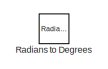
[diagram: root canvas - part 1/5, top right region]
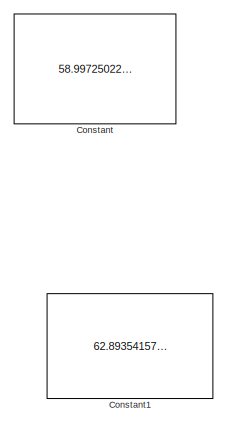
[diagram: root canvas - part 2/5, middle left region]
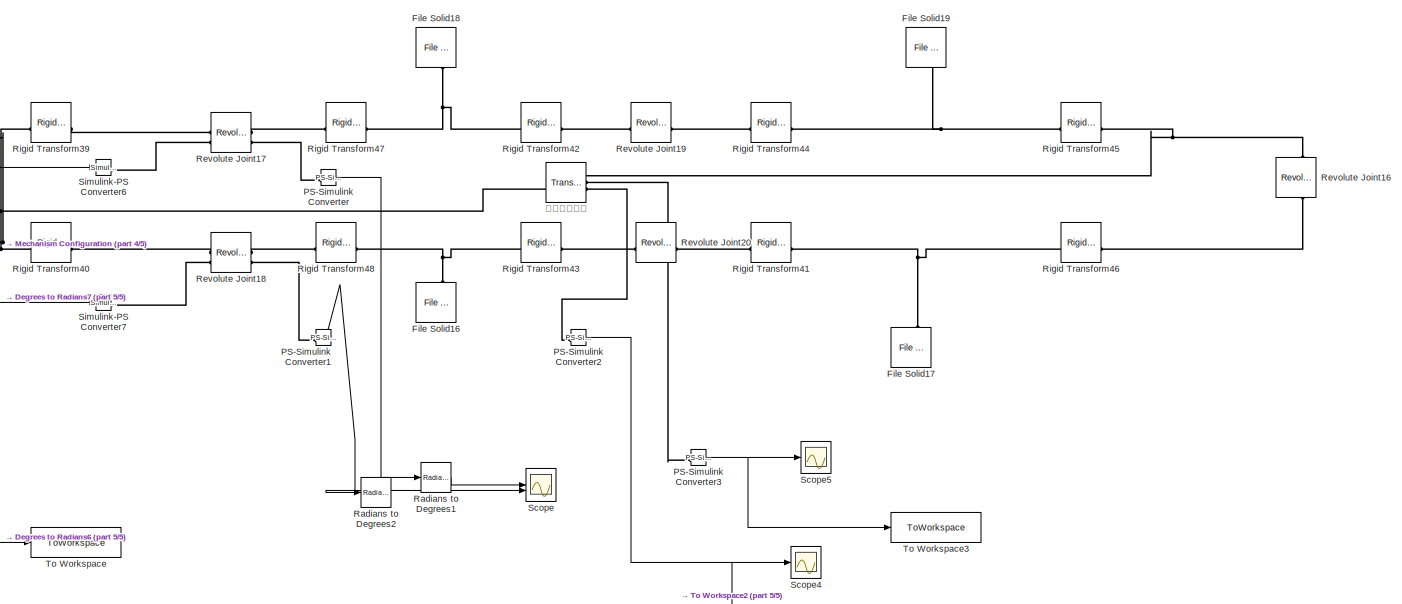
[diagram: root canvas - part 3/5, bottom right region]
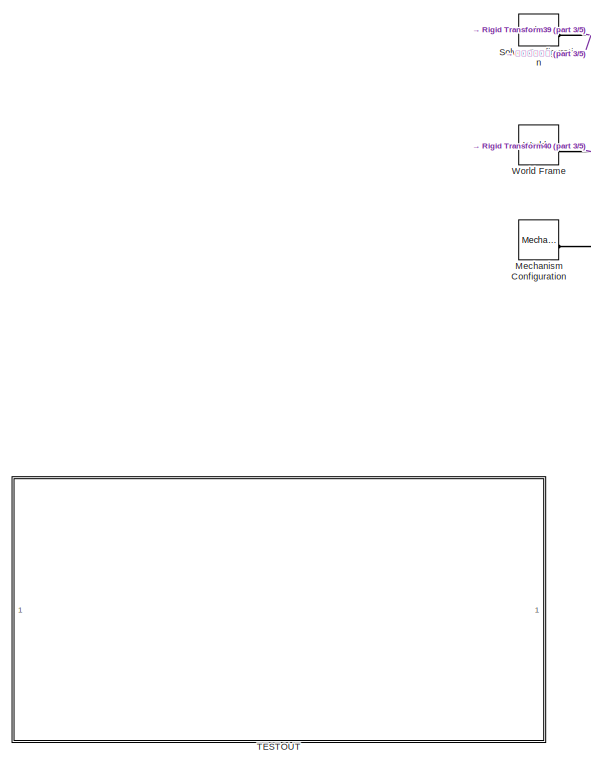
[diagram: root canvas - part 4/5, bottom left region]
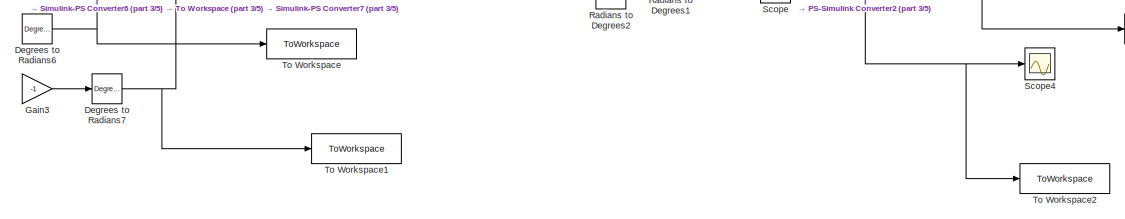
[diagram: root canvas - part 5/5, bottom center region]
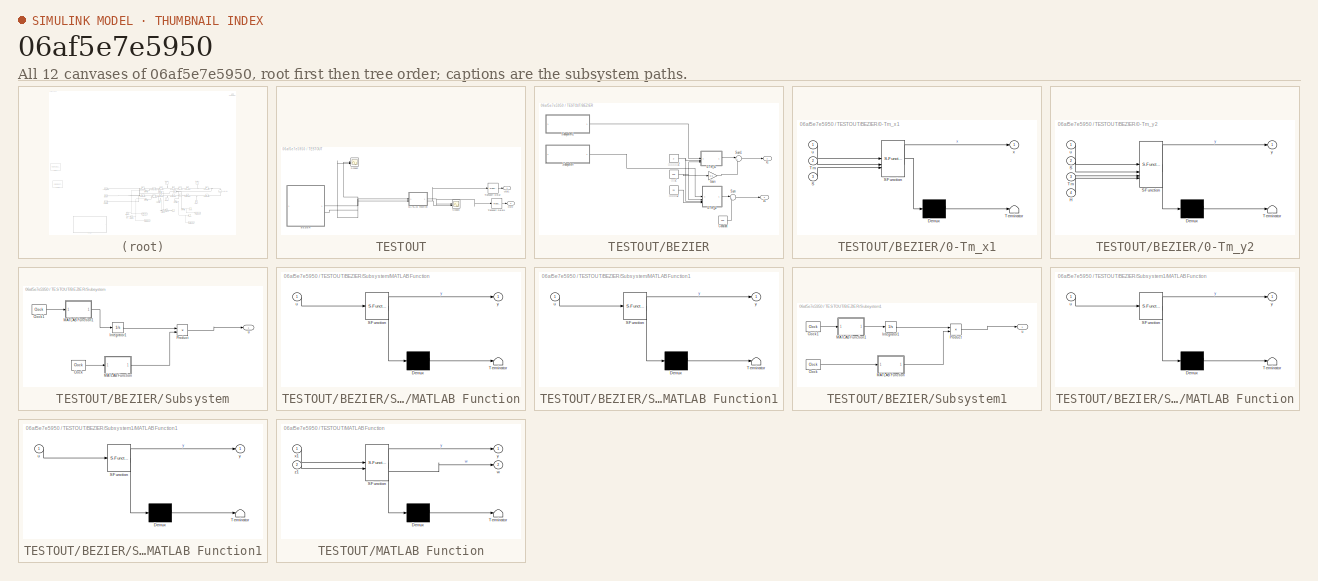
[diagram: thumbnail index - all 12 canvases of the model, root first then tree order]
MODEL slx_06af5e7e5950
KIND model
CONFIG AbsTol = auto
CONFIG EnableMultiTasking = off
CONFIG FixedStep = 0.0001
CONFIG MaxStep = auto
CONFIG MinStep = auto
CONFIG RelTol = 1e-3
CONFIG SampleTimeConstraint = Unconstrained
CONFIG SolverName = FixedStepAuto
CONFIG StartTime = 0.0
CONFIG StopTime = 80
BLOCK [Constant] Constant
  NameLocation = left
  Value = 58.997250224040580
BLOCK [Constant] Constant1
  NameLocation = right
  Value = 62.893541577805120
BLOCK [Reference] Degrees to Radians6  REF=simulink_extras/Transformations/Degrees to
Radians
  SourceBlock = simulink_extras/Transformations/Degrees to\nRadians
  SourceType = DegreesToRadians
BLOCK [Reference] Degrees to Radians7  REF=simulink_extras/Transformations/Degrees to
Radians
  SourceBlock = simulink_extras/Transformations/Degrees to\nRadians
  SourceType = DegreesToRadians
BLOCK [Reference] File Solid16  REF=sm_lib/Body Elements/File Solid
  NameLocation = right
  SourceBlock = sm_lib/Body Elements/File Solid
  SourceType = File Solid
BLOCK [Reference] File Solid17  REF=sm_lib/Body Elements/File Solid
  NameLocation = right
  SourceBlock = sm_lib/Body Elements/File Solid
  SourceType = File Solid
BLOCK [Reference] File Solid18  REF=sm_lib/Body Elements/File Solid
  NameLocation = left
  SourceBlock = sm_lib/Body Elements/File Solid
  SourceType = File Solid
BLOCK [Reference] File Solid19  REF=sm_lib/Body Elements/File Solid
  NameLocation = left
  SourceBlock = sm_lib/Body Elements/File Solid
  SourceType = File Solid
BLOCK [Gain] Gain3
  Gain = -1
BLOCK [Reference] Mechanism Configuration  REF=sm_lib/Utilities/Mechanism
Configuration
  SourceBlock = sm_lib/Utilities/Mechanism\nConfiguration
  SourceType = Mechanism\nConfiguration
BLOCK [Reference] PS-Simulink Converter  REF=nesl_utility/PS-Simulink
Converter
  SourceBlock = nesl_utility/PS-Simulink\nConverter
  SourceType = PS-Simulink\nConverter
BLOCK [Reference] PS-Simulink Converter1  REF=nesl_utility/PS-Simulink
Converter
  SourceBlock = nesl_utility/PS-Simulink\nConverter
  SourceType = PS-Simulink\nConverter
BLOCK [Reference] PS-Simulink Converter2  REF=nesl_utility/PS-Simulink
Converter
  SourceBlock = nesl_utility/PS-Simulink\nConverter
  SourceType = PS-Simulink\nConverter
BLOCK [Reference] PS-Simulink Converter3  REF=nesl_utility/PS-Simulink
Converter
  SourceBlock = nesl_utility/PS-Simulink\nConverter
  SourceType = PS-Simulink\nConverter
BLOCK [Reference] Radians to Degrees  REF=simulink_extras/Transformations/Radians
to Degrees
  Commented = on
  SourceBlock = simulink_extras/Transformations/Radians\nto Degrees
  SourceType = RadiansToDegrees
BLOCK [Reference] Radians to Degrees1  REF=simulink_extras/Transformations/Radians
to Degrees
  SourceBlock = simulink_extras/Transformations/Radians\nto Degrees
  SourceType = RadiansToDegrees
BLOCK [Reference] Radians to Degrees2  REF=simulink_extras/Transformations/Radians
to Degrees
  SourceBlock = simulink_extras/Transformations/Radians\nto Degrees
  SourceType = RadiansToDegrees
BLOCK [Reference] Revolute Joint16  REF=sm_lib/Joints/Revolute Joint
  NameLocation = right
  SourceBlock = sm_lib/Joints/Revolute Joint
  SourceType = Revolute Joint
BLOCK [Reference] Revolute Joint17  REF=sm_lib/Joints/Revolute Joint
  SourceBlock = sm_lib/Joints/Revolute Joint
  SourceType = Revolute Joint
BLOCK [Reference] Revolute Joint18  REF=sm_lib/Joints/Revolute Joint
  SourceBlock = sm_lib/Joints/Revolute Joint
  SourceType = Revolute Joint
BLOCK [Reference] Revolute Joint19  REF=sm_lib/Joints/Revolute Joint
  SourceBlock = sm_lib/Joints/Revolute Joint
  SourceType = Revolute Joint
BLOCK [Reference] Revolute Joint20  REF=sm_lib/Joints/Revolute Joint
  SourceBlock = sm_lib/Joints/Revolute Joint
  SourceType = Revolute Joint
BLOCK [Reference] Rigid Transform39  REF=sm_lib/Frames and
Transforms/Rigid
Transform
  SourceBlock = sm_lib/Frames and\nTransforms/Rigid\nTransform
  SourceType = Rigid\nTransform
BLOCK [Reference] Rigid Transform40  REF=sm_lib/Frames and
Transforms/Rigid
Transform
  SourceBlock = sm_lib/Frames and\nTransforms/Rigid\nTransform
  SourceType = Rigid\nTransform
BLOCK [Reference] Rigid Transform41  REF=sm_lib/Frames and
Transforms/Rigid
Transform
  SourceBlock = sm_lib/Frames and\nTransforms/Rigid\nTransform
  SourceType = Rigid\nTransform
BLOCK [Reference] Rigid Transform42  REF=sm_lib/Frames and
Transforms/Rigid
Transform
  SourceBlock = sm_lib/Frames and\nTransforms/Rigid\nTransform
  SourceType = Rigid\nTransform
BLOCK [Reference] Rigid Transform43  REF=sm_lib/Frames and
Transforms/Rigid
Transform
  SourceBlock = sm_lib/Frames and\nTransforms/Rigid\nTransform
  SourceType = Rigid\nTransform
BLOCK [Reference] Rigid Transform44  REF=sm_lib/Frames and
Transforms/Rigid
Transform
  SourceBlock = sm_lib/Frames and\nTransforms/Rigid\nTransform
  SourceType = Rigid\nTransform
BLOCK [Reference] Rigid Transform45  REF=sm_lib/Frames and
Transforms/Rigid
Transform
  SourceBlock = sm_lib/Frames and\nTransforms/Rigid\nTransform
  SourceType = Rigid\nTransform
BLOCK [Reference] Rigid Transform46  REF=sm_lib/Frames and
Transforms/Rigid
Transform
  SourceBlock = sm_lib/Frames and\nTransforms/Rigid\nTransform
  SourceType = Rigid\nTransform
BLOCK [Reference] Rigid Transform47  REF=sm_lib/Frames and
Transforms/Rigid
Transform
  SourceBlock = sm_lib/Frames and\nTransforms/Rigid\nTransform
  SourceType = Rigid\nTransform
BLOCK [Reference] Rigid Transform48  REF=sm_lib/Frames and
Transforms/Rigid
Transform
  SourceBlock = sm_lib/Frames and\nTransforms/Rigid\nTransform
  SourceType = Rigid\nTransform
BLOCK [Scope] Scope
  Floating = off
  NumInputPorts = 2
  ScopeSpecificationString = Simulink.scopes.TimeScopeBlockCfg('CurrentConfiguration', extmgr.ConfigurationSet(extmgr.Configuration('Core','General UI',true),extmgr.Configuration('Core','Source UI',true),extmgr.Configuration('Sources','WiredSimulink',true),extmgr.Configuration('Visuals','Time Domain',true,'SerializedDisplays',{struct('MinYLimReal','-100.10056','MaxYLimReal','100.09299','YLabelReal','','MinYLimMag',' 0.00000',...<+1776ch>
BLOCK [Scope] Scope4
  Floating = off
  NumInputPorts = 1
  ScopeSpecificationString = Simulink.scopes.TimeScopeBlockCfg('CurrentConfiguration', extmgr.ConfigurationSet(extmgr.Configuration('Core','General UI',true),extmgr.Configuration('Core','Source UI',true),extmgr.Configuration('Sources','WiredSimulink',true,'DataLoggingVariableName','ScopeData4'),extmgr.Configuration('Visuals','Time Domain',true,'SerializedDisplays',{struct('MinYLimReal','-0.21672','MaxYLimReal','-0.18282','YLa...<+1756ch>
BLOCK [Scope] Scope5
  Floating = off
  NumInputPorts = 1
  ScopeSpecificationString = Simulink.scopes.TimeScopeBlockCfg('CurrentConfiguration', extmgr.ConfigurationSet(extmgr.Configuration('Core','General UI',true),extmgr.Configuration('Core','Source UI',true),extmgr.Configuration('Sources','WiredSimulink',true,'DataLoggingVariableName','ScopeData5'),extmgr.Configuration('Visuals','Time Domain',true,'SerializedDisplays',{struct('MinYLimReal','-0.06256','MaxYLimReal','0.06255','YLab...<+1984ch>
BLOCK [Reference] Simulink-PS Converter6  REF=nesl_utility/Simulink-PS
Converter
  SourceBlock = nesl_utility/Simulink-PS\nConverter
  SourceType = Simulink-PS\nConverter
BLOCK [Reference] Simulink-PS Converter7  REF=nesl_utility/Simulink-PS
Converter
  SourceBlock = nesl_utility/Simulink-PS\nConverter
  SourceType = Simulink-PS\nConverter
BLOCK [Reference] Solver Configuration  REF=nesl_utility/Solver
Configuration
  SourceBlock = nesl_utility/Solver\nConfiguration
  SourceType = Solver\nConfiguration
BLOCK [SubSystem] TESTOUT
BLOCK [SubSystem] TESTOUT/BEZIER
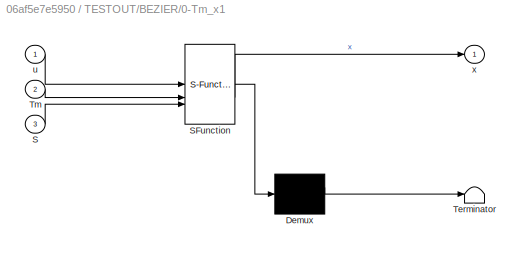
BLOCK [SubSystem] TESTOUT/BEZIER/0-Tm_x1
  ErrorFcn = Stateflow.Translate.translate
  PermitHierarchicalResolution = ExplicitOnly
  SFBlockType = MATLAB Function
  TreatAsAtomicUnit = on
BLOCK [Demux] TESTOUT/BEZIER/0-Tm_x1/ Demux 
  Outputs = 1
BLOCK [S-Function] TESTOUT/BEZIER/0-Tm_x1/ SFunction 
  EnableBusSupport = on
  FunctionName = sf_sfun
  PortCounts = [3 2]
  SFcnIsStateOwnerBlock = off
  SFunctionDeploymentMode = off
  Tag = Stateflow S-Function 1
BLOCK [Terminator] TESTOUT/BEZIER/0-Tm_x1/ Terminator 
BLOCK [Inport] TESTOUT/BEZIER/0-Tm_x1/S
  Port = 3
BLOCK [Inport] TESTOUT/BEZIER/0-Tm_x1/Tm
  Port = 2
BLOCK [Inport] TESTOUT/BEZIER/0-Tm_x1/u
BLOCK [Outport] TESTOUT/BEZIER/0-Tm_x1/x
  VectorParamsAs1DForOutWhenUnconnected = off
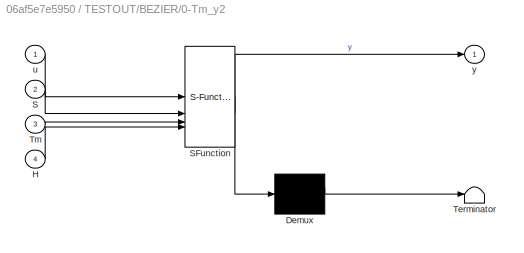
BLOCK [SubSystem] TESTOUT/BEZIER/0-Tm_y2
  ErrorFcn = Stateflow.Translate.translate
  PermitHierarchicalResolution = ExplicitOnly
  SFBlockType = MATLAB Function
  TreatAsAtomicUnit = on
BLOCK [Demux] TESTOUT/BEZIER/0-Tm_y2/ Demux 
  Outputs = 1
BLOCK [S-Function] TESTOUT/BEZIER/0-Tm_y2/ SFunction 
  EnableBusSupport = on
  FunctionName = sf_sfun
  PortCounts = [4 2]
  SFcnIsStateOwnerBlock = off
  SFunctionDeploymentMode = off
  Tag = Stateflow S-Function 2
BLOCK [Terminator] TESTOUT/BEZIER/0-Tm_y2/ Terminator 
BLOCK [Inport] TESTOUT/BEZIER/0-Tm_y2/H
  Port = 4
BLOCK [Inport] TESTOUT/BEZIER/0-Tm_y2/S
  Port = 2
BLOCK [Inport] TESTOUT/BEZIER/0-Tm_y2/Tm
  Port = 3
BLOCK [Inport] TESTOUT/BEZIER/0-Tm_y2/u
BLOCK [Outport] TESTOUT/BEZIER/0-Tm_y2/y
  VectorParamsAs1DForOutWhenUnconnected = off
BLOCK [Constant] TESTOUT/BEZIER/Constant
  Value = 200
BLOCK [Gain] TESTOUT/BEZIER/Gain
  Gain = 0.5
BLOCK [SubSystem] TESTOUT/BEZIER/Subsystem
BLOCK [Reference] TESTOUT/BEZIER/Subsystem/Clock  REF=simulink_extras/Flip Flops/Clock
  SourceBlock = simulink_extras/Flip Flops/Clock
  SourceType = Digital clock
BLOCK [Reference] TESTOUT/BEZIER/Subsystem/Clock1  REF=simulink_extras/Flip Flops/Clock
  SourceBlock = simulink_extras/Flip Flops/Clock
  SourceType = Digital clock
BLOCK [Integrator] TESTOUT/BEZIER/Subsystem/Integrator1
BLOCK [SubSystem] TESTOUT/BEZIER/Subsystem/MATLAB Function
  ErrorFcn = Stateflow.Translate.translate
  PermitHierarchicalResolution = ExplicitOnly
  SFBlockType = MATLAB Function
  TreatAsAtomicUnit = on
BLOCK [Demux] TESTOUT/BEZIER/Subsystem/MATLAB Function/ Demux 
  Outputs = 1
BLOCK [S-Function] TESTOUT/BEZIER/Subsystem/MATLAB Function/ SFunction 
  EnableBusSupport = on
  FunctionName = sf_sfun
  PortCounts = [1 2]
  SFcnIsStateOwnerBlock = off
  SFunctionDeploymentMode = off
  Tag = Stateflow S-Function 17
BLOCK [Terminator] TESTOUT/BEZIER/Subsystem/MATLAB Function/ Terminator 
BLOCK [Inport] TESTOUT/BEZIER/Subsystem/MATLAB Function/u
BLOCK [Outport] TESTOUT/BEZIER/Subsystem/MATLAB Function/y
  VectorParamsAs1DForOutWhenUnconnected = off
BLOCK [SubSystem] TESTOUT/BEZIER/Subsystem/MATLAB Function1
  ErrorFcn = Stateflow.Translate.translate
  PermitHierarchicalResolution = ExplicitOnly
  SFBlockType = MATLAB Function
  TreatAsAtomicUnit = on
BLOCK [Demux] TESTOUT/BEZIER/Subsystem/MATLAB Function1/ Demux 
  Outputs = 1
BLOCK [S-Function] TESTOUT/BEZIER/Subsystem/MATLAB Function1/ SFunction 
  EnableBusSupport = on
  FunctionName = sf_sfun
  PortCounts = [1 2]
  SFcnIsStateOwnerBlock = off
  SFunctionDeploymentMode = off
  Tag = Stateflow S-Function 18
BLOCK [Terminator] TESTOUT/BEZIER/Subsystem/MATLAB Function1/ Terminator 
BLOCK [Inport] TESTOUT/BEZIER/Subsystem/MATLAB Function1/u
BLOCK [Outport] TESTOUT/BEZIER/Subsystem/MATLAB Function1/y
  VectorParamsAs1DForOutWhenUnconnected = off
BLOCK [Product] TESTOUT/BEZIER/Subsystem/Product
BLOCK [Outport] TESTOUT/BEZIER/Subsystem/u
  VectorParamsAs1DForOutWhenUnconnected = off
BLOCK [SubSystem] TESTOUT/BEZIER/Subsystem1
BLOCK [Reference] TESTOUT/BEZIER/Subsystem1/Clock  REF=simulink_extras/Flip Flops/Clock
  SourceBlock = simulink_extras/Flip Flops/Clock
  SourceType = Digital clock
BLOCK [Reference] TESTOUT/BEZIER/Subsystem1/Clock1  REF=simulink_extras/Flip Flops/Clock
  SourceBlock = simulink_extras/Flip Flops/Clock
  SourceType = Digital clock
BLOCK [Integrator] TESTOUT/BEZIER/Subsystem1/Integrator1
BLOCK [SubSystem] TESTOUT/BEZIER/Subsystem1/MATLAB Function
  ErrorFcn = Stateflow.Translate.translate
  PermitHierarchicalResolution = ExplicitOnly
  SFBlockType = MATLAB Function
  TreatAsAtomicUnit = on
BLOCK [Demux] TESTOUT/BEZIER/Subsystem1/MATLAB Function/ Demux 
  Outputs = 1
BLOCK [S-Function] TESTOUT/BEZIER/Subsystem1/MATLAB Function/ SFunction 
  EnableBusSupport = on
  FunctionName = sf_sfun
  PortCounts = [1 2]
  SFcnIsStateOwnerBlock = off
  SFunctionDeploymentMode = off
  Tag = Stateflow S-Function 19
BLOCK [Terminator] TESTOUT/BEZIER/Subsystem1/MATLAB Function/ Terminator 
BLOCK [Inport] TESTOUT/BEZIER/Subsystem1/MATLAB Function/u
BLOCK [Outport] TESTOUT/BEZIER/Subsystem1/MATLAB Function/y
  VectorParamsAs1DForOutWhenUnconnected = off
BLOCK [SubSystem] TESTOUT/BEZIER/Subsystem1/MATLAB Function1
  ErrorFcn = Stateflow.Translate.translate
  PermitHierarchicalResolution = ExplicitOnly
  SFBlockType = MATLAB Function
  TreatAsAtomicUnit = on
BLOCK [Demux] TESTOUT/BEZIER/Subsystem1/MATLAB Function1/ Demux 
  Outputs = 1
BLOCK [S-Function] TESTOUT/BEZIER/Subsystem1/MATLAB Function1/ SFunction 
  EnableBusSupport = on
  FunctionName = sf_sfun
  PortCounts = [1 2]
  SFcnIsStateOwnerBlock = off
  SFunctionDeploymentMode = off
  Tag = Stateflow S-Function 20
BLOCK [Terminator] TESTOUT/BEZIER/Subsystem1/MATLAB Function1/ Terminator 
BLOCK [Inport] TESTOUT/BEZIER/Subsystem1/MATLAB Function1/u
BLOCK [Outport] TESTOUT/BEZIER/Subsystem1/MATLAB Function1/y
  VectorParamsAs1DForOutWhenUnconnected = off
BLOCK [Product] TESTOUT/BEZIER/Subsystem1/Product
BLOCK [Outport] TESTOUT/BEZIER/Subsystem1/u
  VectorParamsAs1DForOutWhenUnconnected = off
BLOCK [Sum] TESTOUT/BEZIER/Sum
  Inputs = |+-
BLOCK [Sum] TESTOUT/BEZIER/Sum1
  Inputs = |+-
BLOCK [Outport] TESTOUT/BEZIER/x1
  VectorParamsAs1DForOutWhenUnconnected = off
BLOCK [Outport] TESTOUT/BEZIER/z1
  Port = 2
  VectorParamsAs1DForOutWhenUnconnected = off
BLOCK [Constant] TESTOUT/BEZIER/抬腿高度2
  Value = 20
BLOCK [Constant] TESTOUT/BEZIER/摆动相周期2
  Value = 2
BLOCK [Constant] TESTOUT/BEZIER/步长2
  Value = 100
BLOCK [SubSystem] TESTOUT/MATLAB Function
  ErrorFcn = Stateflow.Translate.translate
  PermitHierarchicalResolution = ExplicitOnly
  SFBlockType = MATLAB Function
  TreatAsAtomicUnit = on
BLOCK [Demux] TESTOUT/MATLAB Function/ Demux 
  Outputs = 1
BLOCK [S-Function] TESTOUT/MATLAB Function/ SFunction 
  EnableBusSupport = on
  FunctionName = sf_sfun
  PortCounts = [2 3]
  SFcnIsStateOwnerBlock = off
  SFunctionDeploymentMode = off
  Tag = Stateflow S-Function 3
BLOCK [Terminator] TESTOUT/MATLAB Function/ Terminator 
BLOCK [Outport] TESTOUT/MATLAB Function/w
  Port = 2
BLOCK [Inport] TESTOUT/MATLAB Function/x1
BLOCK [Outport] TESTOUT/MATLAB Function/y
  VectorParamsAs1DForOutWhenUnconnected = off
BLOCK [Inport] TESTOUT/MATLAB Function/z1
  Port = 2
BLOCK [Outport] TESTOUT/Out1
BLOCK [Outport] TESTOUT/Out2
  Port = 2
BLOCK [Scope] TESTOUT/Scope2
  Floating = off
  NumInputPorts = 2
  ScopeSpecificationString = Simulink.scopes.TimeScopeBlockCfg('CurrentConfiguration', extmgr.ConfigurationSet(extmgr.Configuration('Core','General UI',true),extmgr.Configuration('Core','Source UI',true),extmgr.Configuration('Sources','WiredSimulink',true,'DataLoggingVariableName','ScopeData2'),extmgr.Configuration('Visuals','Time Domain',true,'SerializedDisplays',{struct('MinYLimReal','-200.00000','MaxYLimReal','100.00000','...<+1857ch>
BLOCK [Scope] TESTOUT/Scope3
  Floating = off
  NumInputPorts = 2
  ScopeSpecificationString = Simulink.scopes.TimeScopeBlockCfg('CurrentConfiguration', extmgr.ConfigurationSet(extmgr.Configuration('Core','General UI',true),extmgr.Configuration('Core','Source UI',true),extmgr.Configuration('Sources','WiredSimulink',true,'DataLoggingVariableName','ScopeData3'),extmgr.Configuration('Visuals','Time Domain',true,'SerializedDisplays',{struct('MinYLimReal','42.62894','MaxYLimReal','84.21536','YLa...<+1483ch>
BLOCK [TransportDelay] TESTOUT/Transport Delay
BLOCK [TransportDelay] TESTOUT/Transport Delay1
BLOCK [ToWorkspace] To Workspace
  FixptAsFi = on
  MaxDataPoints = inf
  SampleTime = -1
  SaveFormat = Timeseries
  VariableName = M1
BLOCK [ToWorkspace] To Workspace1
  FixptAsFi = on
  MaxDataPoints = inf
  SampleTime = -1
  SaveFormat = Timeseries
  VariableName = M2
BLOCK [ToWorkspace] To Workspace2
  FixptAsFi = on
  MaxDataPoints = inf
  SampleTime = -1
  VariableName = Y
BLOCK [ToWorkspace] To Workspace3
  FixptAsFi = on
  MaxDataPoints = inf
  SampleTime = -1
  VariableName = X
BLOCK [Reference] World Frame  REF=sm_lib/Frames and
Transforms/World Frame
  SourceBlock = sm_lib/Frames and\nTransforms/World Frame
  SourceType = World Frame
BLOCK [Reference] 虚拟腿传感器  REF=sm_lib/Frames and
Transforms/Transform
Sensor
  SourceBlock = sm_lib/Frames and\nTransforms/Transform\nSensor
  SourceType = Transform\nSensor
NET Degrees to Radians6:1 -> Simulink-PS Converter6:1, To Workspace:1
NET Degrees to Radians7:1 -> Simulink-PS Converter7:1, To Workspace1:1
LINE Gain3:1 -> Degrees to Radians7:1
LINE PS-Simulink Converter1:1 -> Radians to Degrees2:1
NET PS-Simulink Converter2:1 -> Scope4:1, To Workspace2:1
NET PS-Simulink Converter3:1 -> Scope5:1, To Workspace3:1
LINE PS-Simulink Converter:1 -> Radians to Degrees1:1
LINE Radians to Degrees1:1 -> Scope:1
LINE Radians to Degrees2:1 -> Scope:2
LINE TESTOUT/BEZIER/0-Tm_x1:1 -> TESTOUT/BEZIER/Sum1:1
LINE TESTOUT/BEZIER/0-Tm_y2:1 -> TESTOUT/BEZIER/Sum:1
LINE TESTOUT/BEZIER/Constant:1 -> TESTOUT/BEZIER/Sum:2
LINE TESTOUT/BEZIER/Gain:1 -> TESTOUT/BEZIER/Sum1:2
LINE TESTOUT/BEZIER/Subsystem/Clock1:1 -> TESTOUT/BEZIER/Subsystem/MATLAB Function1:1
LINE TESTOUT/BEZIER/Subsystem/Clock:1 -> TESTOUT/BEZIER/Subsystem/MATLAB Function:1
LINE TESTOUT/BEZIER/Subsystem/Integrator1:1 -> TESTOUT/BEZIER/Subsystem/Product:1
LINE TESTOUT/BEZIER/Subsystem/MATLAB Function1:1 -> TESTOUT/BEZIER/Subsystem/Integrator1:1
LINE TESTOUT/BEZIER/Subsystem/MATLAB Function:1 -> TESTOUT/BEZIER/Subsystem/Product:2
LINE TESTOUT/BEZIER/Subsystem/Product:1 -> TESTOUT/BEZIER/Subsystem/u:1
LINE TESTOUT/BEZIER/Subsystem1/Clock1:1 -> TESTOUT/BEZIER/Subsystem1/MATLAB Function1:1
LINE TESTOUT/BEZIER/Subsystem1/Clock:1 -> TESTOUT/BEZIER/Subsystem1/MATLAB Function:1
LINE TESTOUT/BEZIER/Subsystem1/Integrator1:1 -> TESTOUT/BEZIER/Subsystem1/Product:1
LINE TESTOUT/BEZIER/Subsystem1/MATLAB Function1:1 -> TESTOUT/BEZIER/Subsystem1/Integrator1:1
LINE TESTOUT/BEZIER/Subsystem1/MATLAB Function:1 -> TESTOUT/BEZIER/Subsystem1/Product:2
LINE TESTOUT/BEZIER/Subsystem1/Product:1 -> TESTOUT/BEZIER/Subsystem1/u:1
LINE TESTOUT/BEZIER/Subsystem1:1 -> TESTOUT/BEZIER/0-Tm_x1:1
LINE TESTOUT/BEZIER/Subsystem:1 -> TESTOUT/BEZIER/0-Tm_y2:1
LINE TESTOUT/BEZIER/Sum1:1 -> TESTOUT/BEZIER/x1:1
LINE TESTOUT/BEZIER/Sum:1 -> TESTOUT/BEZIER/z1:1
LINE TESTOUT/BEZIER/抬腿高度2:1 -> TESTOUT/BEZIER/0-Tm_y2:4
NET TESTOUT/BEZIER/摆动相周期2:1 -> TESTOUT/BEZIER/0-Tm_x1:2, TESTOUT/BEZIER/0-Tm_y2:3
NET TESTOUT/BEZIER/步长2:1 -> TESTOUT/BEZIER/0-Tm_x1:3, TESTOUT/BEZIER/0-Tm_y2:2, TESTOUT/BEZIER/Gain:1
NET TESTOUT/BEZIER:1 -> TESTOUT/MATLAB Function:1, TESTOUT/Scope2:1
NET TESTOUT/BEZIER:2 -> TESTOUT/MATLAB Function:2, TESTOUT/Scope2:2
NET TESTOUT/MATLAB Function:1 -> TESTOUT/Scope3:1, TESTOUT/Transport Delay1:1
NET TESTOUT/MATLAB Function:2 -> TESTOUT/Scope3:2, TESTOUT/Transport Delay:1
LINE TESTOUT/Transport Delay1:1 -> TESTOUT/Out2:1
LINE TESTOUT/Transport Delay:1 -> TESTOUT/Out1:1
PNET net1: File Solid16:RConn1 -- Rigid Transform43:LConn1 -- Rigid Transform48:RConn1
PNET net2: File Solid17:RConn1 -- Rigid Transform41:RConn1 -- Rigid Transform46:LConn1
PNET net3: File Solid18:RConn1 -- Rigid Transform42:LConn1 -- Rigid Transform47:RConn1
PNET net4: File Solid19:RConn1 -- Rigid Transform44:RConn1 -- Rigid Transform45:LConn1
PNET net5: Mechanism Configuration:RConn1 -- Rigid Transform39:LConn1 -- Rigid Transform40:LConn1 -- Solver Configuration:RConn1 -- World Frame:RConn1 -- 虚拟腿传感器:LConn1
PLINE PS-Simulink Converter1:LConn1 -- Revolute Joint18:RConn2
PLINE PS-Simulink Converter2:LConn1 -- 虚拟腿传感器:RConn3
PLINE PS-Simulink Converter3:LConn1 -- 虚拟腿传感器:RConn2
PLINE PS-Simulink Converter:LConn1 -- Revolute Joint17:RConn2
PLINE Revolute Joint16:LConn1 -- Rigid Transform46:RConn1
PNET net6: Revolute Joint16:RConn1 -- Rigid Transform45:RConn1 -- 虚拟腿传感器:RConn1
PLINE Revolute Joint17:LConn1 -- Rigid Transform39:RConn1
PLINE Revolute Joint17:LConn2 -- Simulink-PS Converter6:RConn1
PLINE Revolute Joint17:RConn1 -- Rigid Transform47:LConn1
PLINE Revolute Joint18:LConn1 -- Rigid Transform40:RConn1
PLINE Revolute Joint18:LConn2 -- Simulink-PS Converter7:RConn1
PLINE Revolute Joint18:RConn1 -- Rigid Transform48:LConn1
PLINE Revolute Joint19:LConn1 -- Rigid Transform42:RConn1
PLINE Revolute Joint19:RConn1 -- Rigid Transform44:LConn1
PLINE Revolute Joint20:LConn1 -- Rigid Transform43:RConn1
PLINE Revolute Joint20:RConn1 -- Rigid Transform41:LConn1
note: NET lines group one-source signal fan-out (src -> all destinations, sorted); 1:1 wires keep LINE; PNET lines group multi-terminal physical nets as a canonical sorted terminal list (undirected conserving connections); 2-terminal nets keep the pairwise PLINE form
CHART TESTOUT/BEZIER/0-Tm_x1 states=1 transitions=1
  STATE_LABEL 'eML_blk_kernel()'
  STATE_LABEL 'SCRIPT:\nfunction x = fcn(u,Tm,S)\n\nif u>0\n    x =S*(u/Tm-1/(2*pi)*sin(2*pi*u/Tm));\nelse \n    u=-u;\n     x =S*(u/Tm-1/(2*pi)*sin(2*pi*u/Tm));\nend\n'
CHART TESTOUT/BEZIER/0-Tm_y2 states=1 transitions=1
  STATE_LABEL 'eML_blk_kernel()'
  STATE_LABEL 'SCRIPT:\nfunction y = fcn(u,S,Tm,H)\n\nn=4;\nif u>0\n    y=2*H*(u/Tm-1/(n*pi)*sin(n*pi*u/Tm)).*(u>=0&u<Tm/2)+2*H*(1-u/Tm+1/(n*pi)*sin(n*pi*u/Tm)).*(u>=Tm/2&u<Tm);;\nelse \n    y=0;\nend\n'
CHART TESTOUT/MATLAB Function states=1 transitions=1
  STATE_LABEL 'eML_blk_kernel()'
  STATE_LABEL 'SCRIPT:\nfunction [y,w] = fcn(x1, z1)\n\n%#codegen\n\n\nL1 = 100;\nL2 = 180;\n\nx = x1;\ny = z1;\n\nL = sqrt(x^2 + y^2);\n\ntheta_left =  rad2deg(asin(x/L));\n\ntheta_right = rad2deg( acos((L^2 + L1^2-L2^2)/(2*L1*L)));\n\n\n\ntheta_OUT = theta_right- theta_left ;\n\ntheta_IN = theta_right + theta_left;\n\n\ny = theta_OUT ;\nw = theta_IN  ;'
CHART TESTOUT/BEZIER/Subsystem/MATLAB Function states=1 transitions=1
  STATE_LABEL 'eML_blk_kernel()'
  STATE_LABEL 'SCRIPT:\nfunction y = fcn(u)\nif u==0\n    y = -1;\nelse\n    y=1;\nend\nend\n'
CHART TESTOUT/BEZIER/Subsystem/MATLAB Function1 states=1 transitions=1
  STATE_LABEL 'eML_blk_kernel()'
  STATE_LABEL 'SCRIPT:\nfunction y = fcn(u)\nif u==0\n    y = -1;\nelse\n    y=1;\nend\nend\n'
CHART TESTOUT/BEZIER/Subsystem1/MATLAB Function states=1 transitions=1
  STATE_LABEL 'eML_blk_kernel()'
  STATE_LABEL 'SCRIPT:\nfunction y = fcn(u)\nif u==0\n    y = -1;\nelse\n    y=1;\nend\nend\n'
CHART TESTOUT/BEZIER/Subsystem1/MATLAB Function1 states=1 transitions=1
  STATE_LABEL 'eML_blk_kernel()'
  STATE_LABEL 'SCRIPT:\nfunction y = fcn(u)\nif u==0\n    y = -1;\nelse\n    y=1;\nend\nend\n'
CHART  states=0 transitions=0
CHART  states=0 transitions=0
CHART  states=0 transitions=0
CHART  states=0 transitions=0
CHART  states=0 transitions=0
CHART  states=0 transitions=0
CHART  states=0 transitions=0
